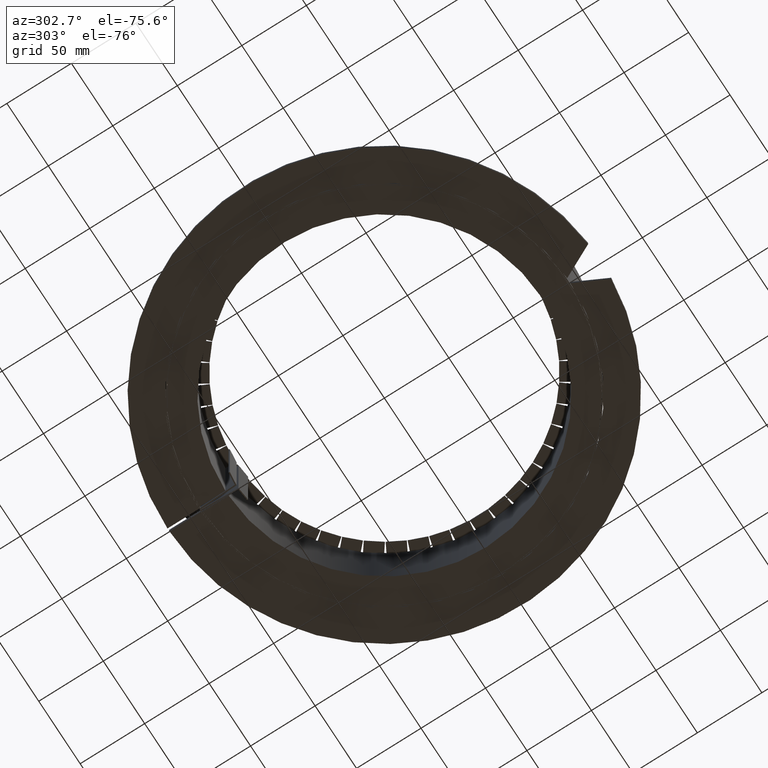
[diagram: clean part render]
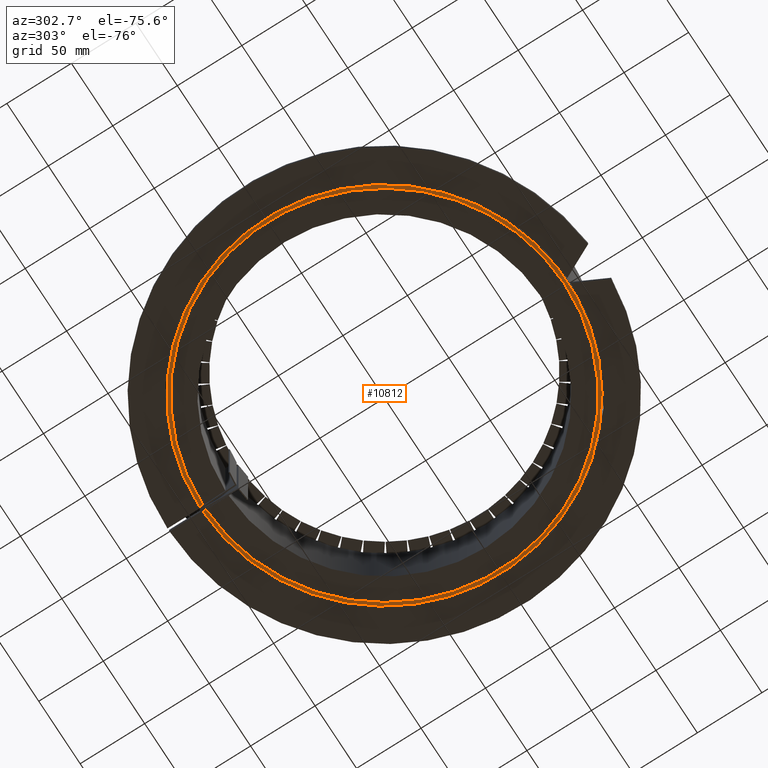
[diagram: same view with one face highlighted and labeled with its STEP entity id]
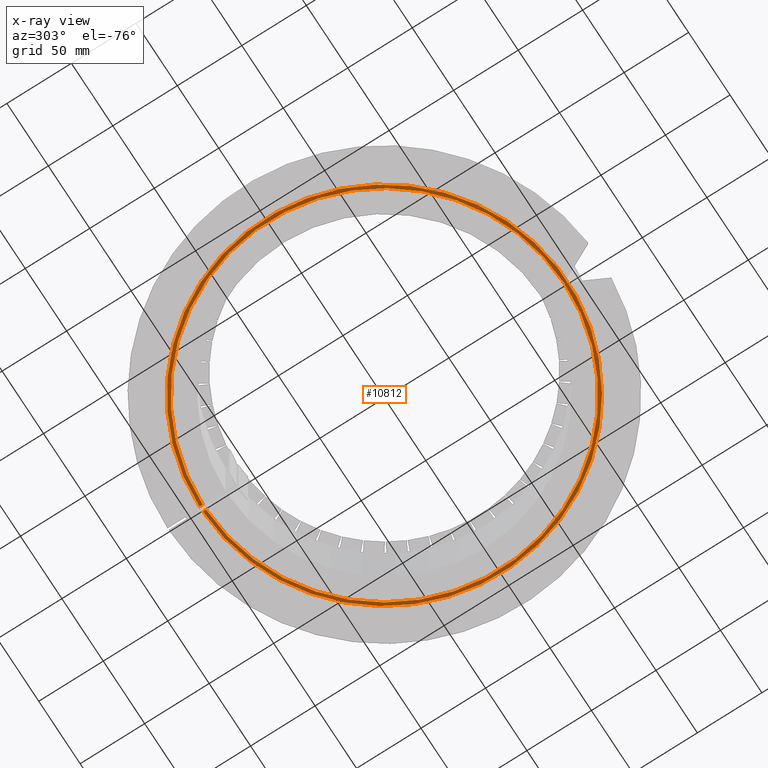
[diagram: x-ray of the same camera — body ghosted, the highlighted face saturated]
A machine part, auxiliary view. The second image highlights one B-rep face of the part: STEP entity #10812.
The next image is the same camera in x-ray: the body ghosted, the highlighted face saturated — about 0% of this face is hidden behind the body in this view.
In plain terms, the highlighted planar face has unit normal (0, 0, 1).
Its self-contained STEP definition (entity closure, byte-faithful):
#10678=CARTESIAN_POINT('',(-2.000000000000018,139.48566234563322,-29.950000000000003));
#10679=VERTEX_POINT('',#10678);
#10680=CARTESIAN_POINT('',(-2.000000000000019,141.98591479439079,-29.950000000000003));
#10681=VERTEX_POINT('',#10680);
#10682=CARTESIAN_POINT('',(-2.000000000000018,139.48566234563322,-29.950000000000003));
#10683=DIRECTION('',(0.0,1.0,0.0));
#10684=VECTOR('',#10683,2.500252448757578);
#10685=LINE('',#10682,#10684);
#10686=EDGE_CURVE('',#10679,#10681,#10685,.T.);
#10718=CARTESIAN_POINT('',(1.999999999999982,141.98591479439079,-29.950000000000003));
#10719=VERTEX_POINT('',#10718);
#10720=CARTESIAN_POINT('',(1.999999999999982,139.48566234563322,-29.950000000000003));
#10721=VERTEX_POINT('',#10720);
#10722=CARTESIAN_POINT('',(1.999999999999982,141.98591479439079,-29.950000000000003));
#10723=DIRECTION('',(0.0,-1.0,0.0));
#10724=VECTOR('',#10723,2.50025244875755);
#10725=LINE('',#10722,#10724);
#10726=EDGE_CURVE('',#10719,#10721,#10725,.T.);
#10758=CARTESIAN_POINT('',(-8.312795E-016,0.0,-29.950000000000003));
#10759=DIRECTION('',(5.505966E-021,-3.908848E-019,1.0));
#10760=DIRECTION('',(-0.014084507042254,0.999900808411203,3.909236E-019));
#10761=AXIS2_PLACEMENT_3D('',#10758,#10759,#10760);
#10762=CIRCLE('',#10761,141.99999999999997);
#10763=EDGE_CURVE('',#10681,#10719,#10762,.T.);
#10795=CARTESIAN_POINT('',(8.859889E-016,-0.106188506503325,-29.950000000000003));
#10796=DIRECTION('',(0.0,0.0,1.0));
#10797=DIRECTION('',(1.0,0.0,0.0));
#10798=AXIS2_PLACEMENT_3D('',#10795,#10796,#10797);
#10799=PLANE('',#10798);
#10800=ORIENTED_EDGE('',*,*,#10763,.F.);
#10801=ORIENTED_EDGE('',*,*,#10686,.F.);
#10802=CARTESIAN_POINT('',(-8.312795E-016,0.0,-29.950000000000003));
#10803=DIRECTION('',(5.705081E-021,-3.978885E-019,1.0));
#10804=DIRECTION('',(-0.014336917562724,0.99989722111565,3.979294E-019));
#10805=AXIS2_PLACEMENT_3D('',#10802,#10803,#10804);
#10806=CIRCLE('',#10805,139.5);
#10807=EDGE_CURVE('',#10679,#10721,#10806,.T.);
#10808=ORIENTED_EDGE('',*,*,#10807,.T.);
#10809=ORIENTED_EDGE('',*,*,#10726,.F.);
#10810=EDGE_LOOP('',(#10800,#10801,#10808,#10809));
#10811=FACE_OUTER_BOUND('',#10810,.T.);
#10812=ADVANCED_FACE('',(#10811),#10799,.F.);